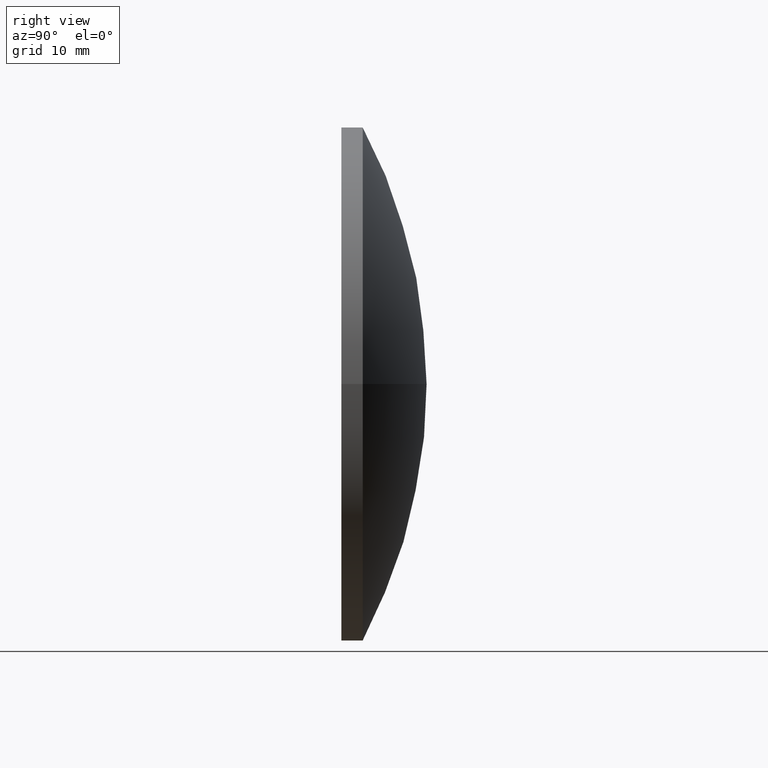
[diagram: clean part render]
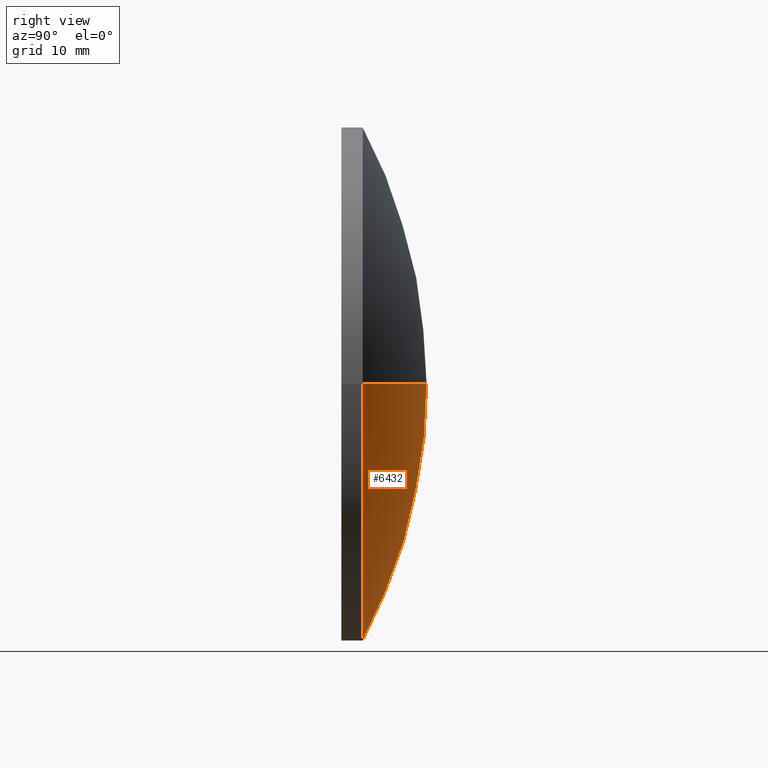
[diagram: same view with one face highlighted and labeled with its STEP entity id]
A machine part, right view. The second image highlights one B-rep face of the part: STEP entity #6432.
In plain terms, the highlighted spherical surface has radius 51.6019 mm.
Its self-contained STEP definition (entity closure, byte-faithful):
#391 = CARTESIAN_POINT ( 'NONE',  ( -2.927737000545303800E-014, 2.000000000000164800, 0.0000000000000000000 ) ) ;
#429 = DIRECTION ( 'NONE',  ( -7.319342501363578300E-015, -1.000000000000000000, -0.0000000000000000000 ) ) ;
#623 = CARTESIAN_POINT ( 'NONE',  ( -24.15000000000005900, 2.000000000000341900, 2.957522019940862300E-015 ) ) ;
#1289 = CIRCLE ( 'NONE', #2898, 24.15000000000003400 ) ;
#1343 = DIRECTION ( 'NONE',  ( 1.224646799147353200E-016, -8.963609366158087900E-031, 1.000000000000000000 ) ) ;
#1888 = FACE_OUTER_BOUND ( 'NONE', #2529, .T. ) ;
#2110 = DIRECTION ( 'NONE',  ( -1.000000000000000000, 0.0000000000000000000, 0.0000000000000000000 ) ) ;
#2529 = EDGE_LOOP ( 'NONE', ( #12729, #6969, #4174 ) ) ;
#2597 = EDGE_CURVE ( 'NONE', #8115, #11141, #8356, .T. ) ;
#2898 = AXIS2_PLACEMENT_3D ( 'NONE', #391, #429, #12498 ) ;
#3576 = DIRECTION ( 'NONE',  ( 1.000000000000000000, -7.261369297355776100E-015, 0.0000000000000000000 ) ) ;
#4174 = ORIENTED_EDGE ( 'NONE', *, *, #7177, .F. ) ;
#4617 = DIRECTION ( 'NONE',  ( -0.0000000000000000000, 0.0000000000000000000, 1.000000000000000000 ) ) ;
#5168 = EDGE_CURVE ( 'NONE', #8115, #8151, #7868, .T. ) ;
#5198 = CARTESIAN_POINT ( 'NONE',  ( 1.463868500272714700E-014, -43.60187499999997800, 0.0000000000000000000 ) ) ;
#5334 = SPHERICAL_SURFACE ( 'NONE', #7679, 51.60187499999996400 ) ;
#5922 = DIRECTION ( 'NONE',  ( 0.0000000000000000000, 0.0000000000000000000, -1.000000000000000000 ) ) ;
#6432 = ADVANCED_FACE ( 'NONE', ( #1888 ), #5334, .T. ) ;
#6969 = ORIENTED_EDGE ( 'NONE', *, *, #5168, .T. ) ;
#7177 = EDGE_CURVE ( 'NONE', #11141, #8151, #1289, .T. ) ;
#7658 = AXIS2_PLACEMENT_3D ( 'NONE', #10115, #5922, #2110 ) ;
#7679 = AXIS2_PLACEMENT_3D ( 'NONE', #10627, #4617, #3576 ) ;
#7868 = CIRCLE ( 'NONE', #7658, 51.60187499999996400 ) ;
#8099 = CARTESIAN_POINT ( 'NONE',  ( 3.954901853927152000E-013, 7.999999999999986700, 0.0000000000000000000 ) ) ;
#8115 = VERTEX_POINT ( 'NONE', #8099 ) ;
#8151 = VERTEX_POINT ( 'NONE', #11011 ) ;
#8356 = CIRCLE ( 'NONE', #12347, 51.60187499999996400 ) ;
#10115 = CARTESIAN_POINT ( 'NONE',  ( 1.463868500272714700E-014, -43.60187499999997800, 0.0000000000000000000 ) ) ;
#10206 = DIRECTION ( 'NONE',  ( 1.000000000000000000, 0.0000000000000000000, -1.224646799147353200E-016 ) ) ;
#10627 = CARTESIAN_POINT ( 'NONE',  ( 1.463868500272714700E-014, -43.60187499999997800, 0.0000000000000000000 ) ) ;
#11011 = CARTESIAN_POINT ( 'NONE',  ( 24.15000000000000600, 1.999999999999988000, 0.0000000000000000000 ) ) ;
#11141 = VERTEX_POINT ( 'NONE', #623 ) ;
#12347 = AXIS2_PLACEMENT_3D ( 'NONE', #5198, #1343, #10206 ) ;
#12498 = DIRECTION ( 'NONE',  ( 1.000000000000000000, -7.326782383007622800E-015, 0.0000000000000000000 ) ) ;
#12729 = ORIENTED_EDGE ( 'NONE', *, *, #2597, .F. ) ;